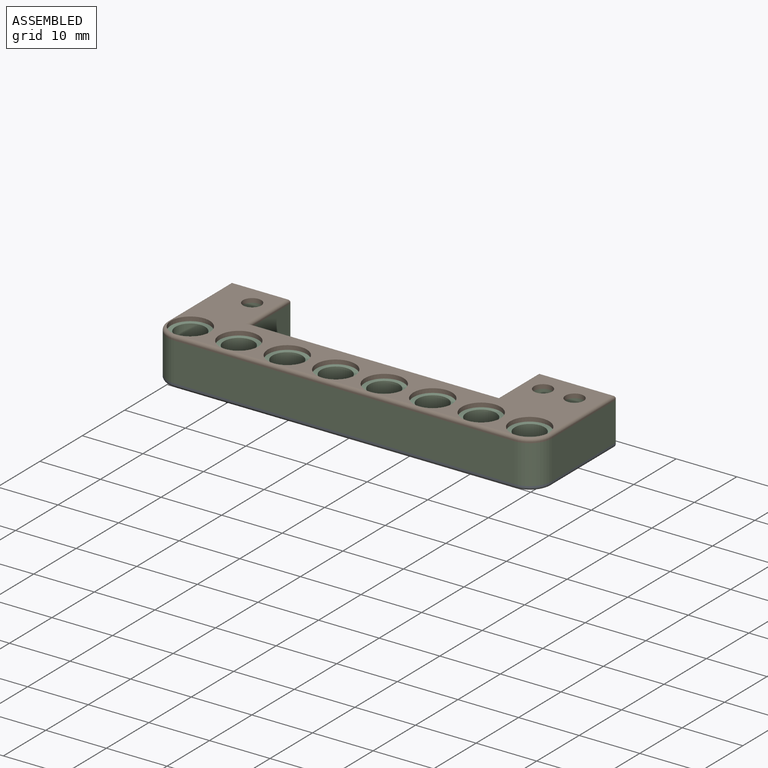
[diagram: assembled view]
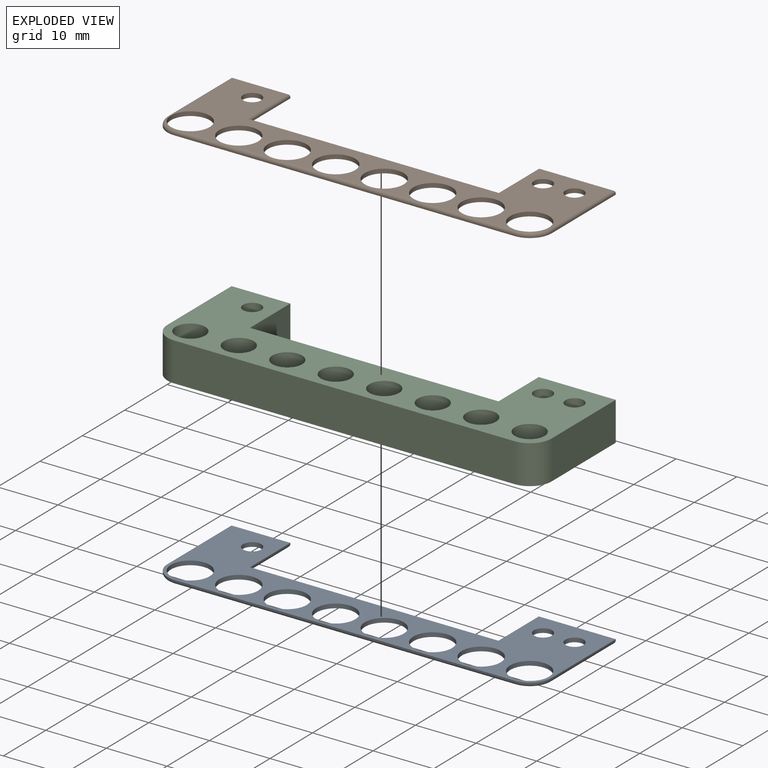
[diagram: exploded view]
GUIDED TOUR — MATED ASSEMBLY (Onshape document 63650e4bb9eb201698afe49c, AutoMate assembly 63650e4bb9eb201698afe49c_6589cb25b0cd0660bc97dc05_730560b40a134088ffc5759b_default)

This assembly has 3 components, labeled P0..P2 below (a component is one placed occurrence of a part; the same part can appear more than once), held together by 2 mates. A mate is a constraint between two components; its type names the relative motion it leaves free:
  FASTENED — locks the two components together rigidly (no relative motion).
Axis/direction vectors are unit vectors and 'through' points are millimeter coordinates, both in the assembly's world frame.

MATES
  1. FASTENED "Fastened 2": P0 <-> P2, direction (0.000, 0.000, 1.000) through (0.79, -9.93, -6.84) mm
  2. FASTENED "Fastened 1": P1 <-> P2, direction (0.000, 0.000, -1.000) through (-7.21, -9.93, -0.44) mm

ASSEMBLY ORDER
  1. P2 — the base component [order verified]
  2. P0 [order verified]
  3. P1 [order verified]
Order-tag legend:
  [order verified] — this step's position reverses a verified removal order: the component was checked to insert without passing through the ones already placed.

Of the 3 components, 3 carry the full construction recipe — the FeatureScript program that regenerates the part's solid from scratch; the rest are supplied as boundary geometry only.
Each toured component is shown spotlighted twice — in the assembled view, then in the exploded view, where a leader line traces a displaced component back to its assembled socket (saturated green if recipe-attached, orange if geometry-only; every other component desaturated gray) — followed by its recipe or geometry summary and the mates that hold it.
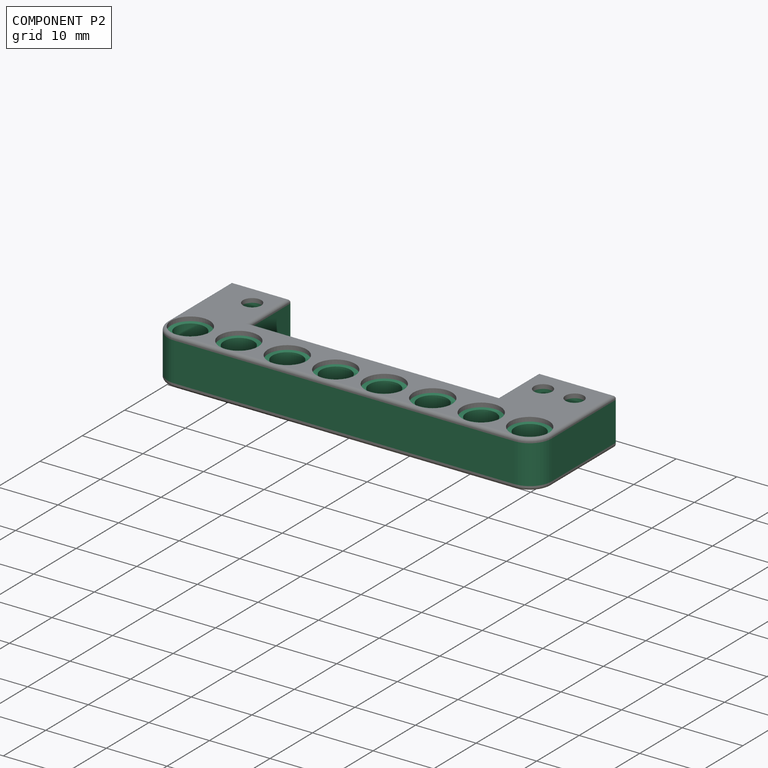
[diagram: component P2 — assembled]
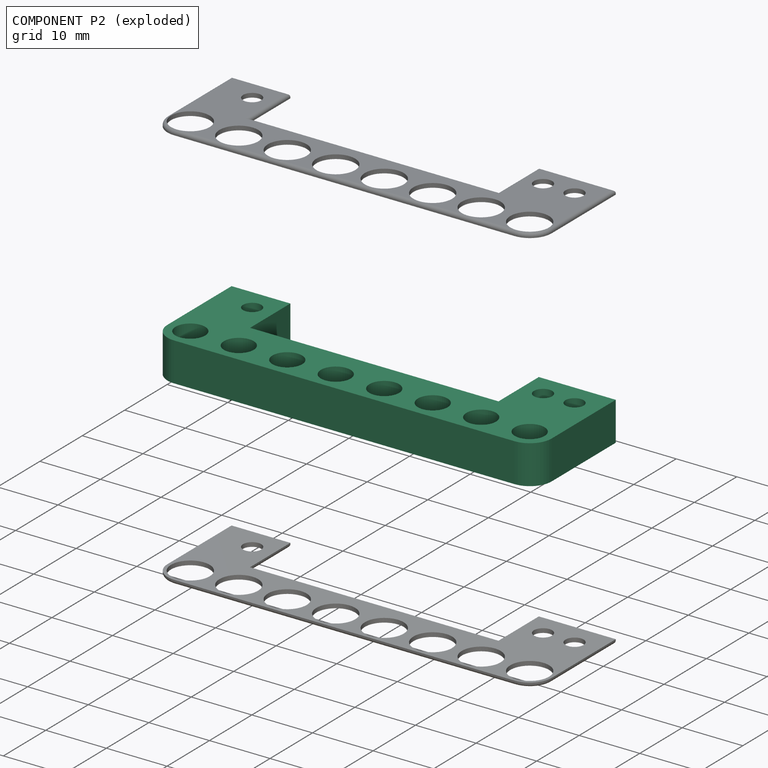
[diagram: component P2 — exploded]
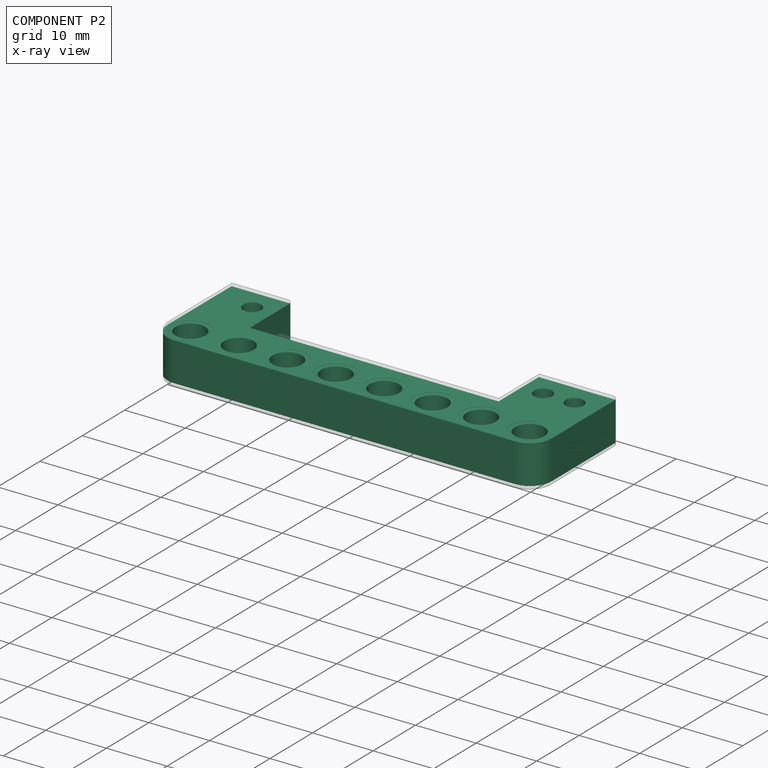
[diagram: component P2 — x-ray view]
COMPONENT P2 — recipe-attached (CADFS 00187021, mesh-verified: the recipe's output STEP matches this component's geometry to below the mesh-comparison resolution (tessellation chordal tolerance ~0.0996 mm)).
Held by: FASTENED mate "Fastened 2" to P0; FASTENED mate "Fastened 1" to P1.
Construction recipe (FeatureScript — the CAD program that rebuilds this solid; sketch coordinates are in the units given by the * unit suffixes, e.g. mm):

FeatureScript 1511;
import(path : "onshape/std/geometry.fs", version : "1511.0");
import(path : "onshape/std/common.fs", version : "1511.0");
const mm = millimeter;
const VERTEX = EntityType.VERTEX;
const EDGE = EntityType.EDGE;
const FACE = EntityType.FACE;
const BODY = EntityType.BODY;
function v(x, y){return vector(x, y);}
function OD(order){return orderDisambiguation(order);}
function OSD(set){return originalSetDisambiguation(set);}
function TD(topology){return topologyDisambiguation(topology);}
function TDD(query){return trueDependencyDisambiguation(query);}
function sQuery(a, b, c) {return sketchEntityQuery(a, b, c);}

annotation { "Feature Type Name" : "Feature", "Feature Type Description" : "" }
export const myFeature = defineFeature(function(context is Context, id is Id, definition is map)
    precondition{}
    {
        {
            var Q0;
            Q0=qCreatedBy(makeId("Top.planeOp"),FACE);
            var sketch = newSketch(context, id + "F0", { "sketchPlane" : qUnion([Q0])});
            skLineSegment(sketch, "E0", {"start": v(-31.7, 18.7) * mm, "end": v(-22, 18.7) * mm});
            skLineSegment(sketch, "E1", {"start": v(-22, 18.7) * mm, "end": v(-22, 9.2) * mm});
            skLineSegment(sketch, "E2", {"start": v(-22, 9.2) * mm, "end": v(19, 9.2) * mm});
            skLineSegment(sketch, "E3", {"start": v(19, 9.2) * mm, "end": v(19, 18.7) * mm});
            skLineSegment(sketch, "E4", {"start": v(19, 18.7) * mm, "end": v(31.7, 18.7) * mm});
            skLineSegment(sketch, "E5", {"start": v(31.7, 18.7) * mm, "end": v(31.7, 0) * mm});
            skLineSegment(sketch, "E6", {"start": v(31.7, 0) * mm, "end": v(-31.7, 0) * mm});
            skLineSegment(sketch, "E7", {"start": v(-31.7, 0) * mm, "end": v(-31.7, 18.7) * mm});
            skCircle(sketch, "E8", {"center": v(-25.5, 14.7) * mm, "radius": 1.5 * mm});
            skCircle(sketch, "E9", {"center": v(22.5, 14.7) * mm, "radius": 1.5 * mm});
            skCircle(sketch, "E10", {"center": v(-28, 3.7) * mm, "radius": 2.45 * mm});
            skCircle(sketch, "E11", {"center": v(4, 3.7) * mm, "radius": 2.45 * mm});
            skCircle(sketch, "E12", {"center": v(-12, 3.7) * mm, "radius": 2.45 * mm});
            skCircle(sketch, "E13", {"center": v(-4, 3.7) * mm, "radius": 2.45 * mm});
            skLineSegment(sketch, "E14.top", {"start": v(-10.35, 0) * mm, "end": v(-18.35, 0) * mm});
            skCircle(sketch, "E15", {"center": v(-20, 3.7) * mm, "radius": 2.45 * mm});
            skCircle(sketch, "E16", {"center": v(12, 3.7) * mm, "radius": 2.45 * mm});
            skCircle(sketch, "E17", {"center": v(20, 3.7) * mm, "radius": 2.45 * mm});
            skCircle(sketch, "E18", {"center": v(28, 3.7) * mm, "radius": 2.45 * mm});
            skCircle(sketch, "E19", {"center": v(27.7, 14.7) * mm, "radius": 1.5 * mm});
            skSolve(sketch);
        }
        {
            var Q0;
            Q0=makeQuery(id+"F0.imprint","IMPRINT",FACE,{"disambiguationData":[TD([[makeQuery(id+"F0.imprint","IMPRINT",EDGE,{"derivedFrom":sQuery(id+"F0.wireOp",EDGE,"E0")}),-1.0]])]});
            extrude(context, id + "F1", {"entities" : qUnion([Q0]), "depth" : 6.4 * mm});
        }
        {
            var Q0;
            Q0=makeQuery(id+"F1.opExtrude","SWEPT_EDGE",EDGE,{"disambiguationData":[OSD([sQuery(id+"F0.wireOp",EDGE,"E6"),sQuery(id+"F0.wireOp",EDGE,"E7")])]});
            var Q1;
            Q1=makeQuery(id+"F1.opExtrude","SWEPT_EDGE",EDGE,{"disambiguationData":[OSD([sQuery(id+"F0.wireOp",EDGE,"E5"),sQuery(id+"F0.wireOp",EDGE,"E6")])]});
            fillet(context, id + "F2", {"entities" : qUnion([Q0, Q1]), "radius" : 3.6 * mm, "tangentPropagation" : true, "allowEdgeOverflow" : false});
        }
    });
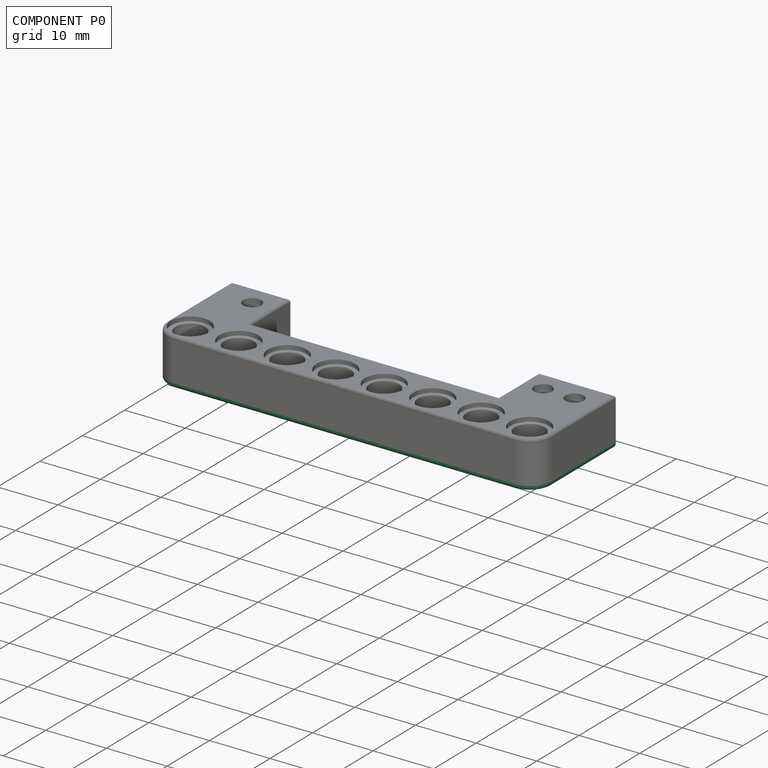
[diagram: component P0 — assembled]
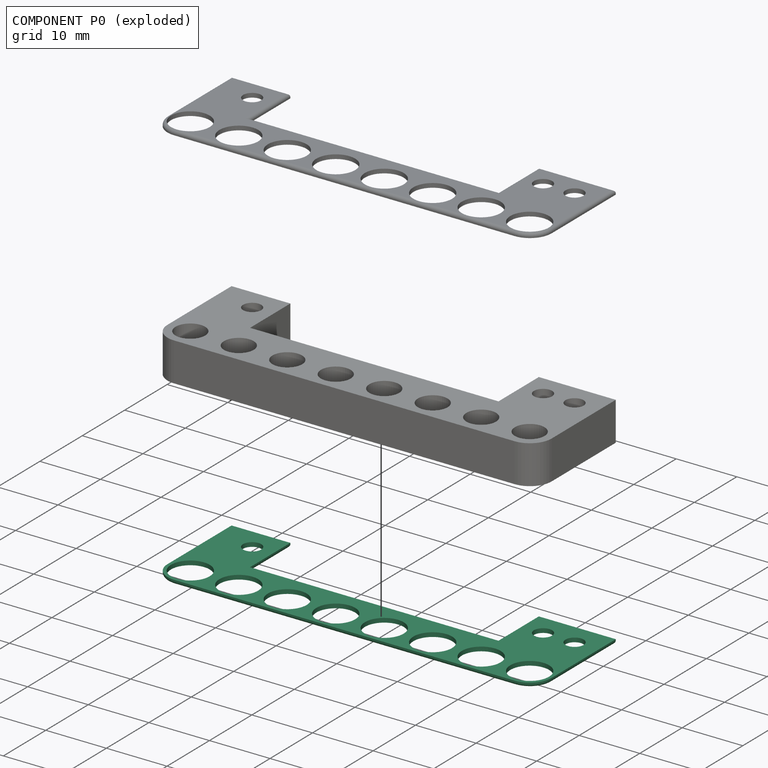
[diagram: component P0 — exploded]
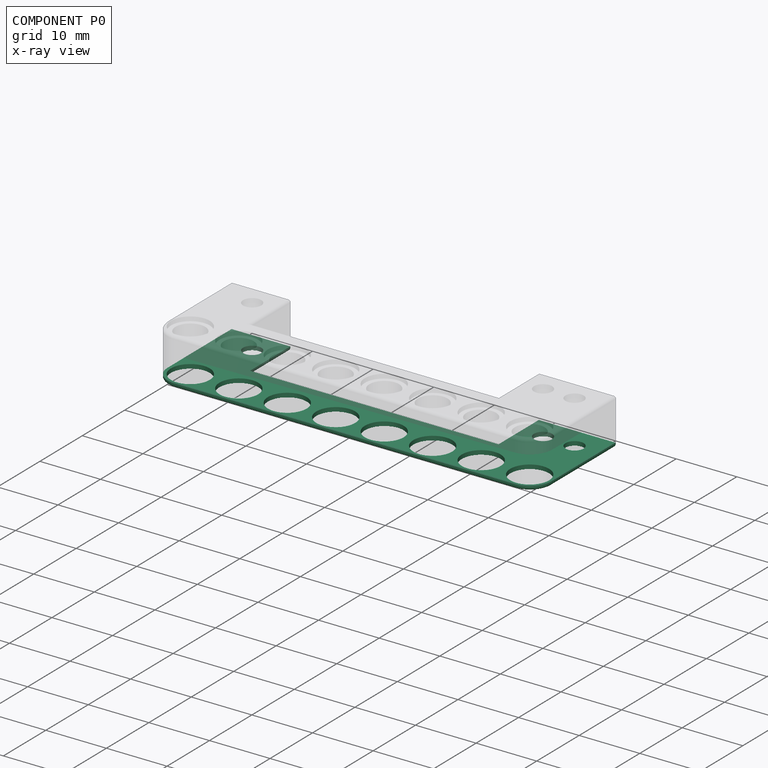
[diagram: component P0 — x-ray view]
COMPONENT P0 — recipe-attached (CADFS 00187020, mesh-verified: the recipe's output STEP matches this component's geometry to below the mesh-comparison resolution (tessellation chordal tolerance ~0.0992 mm)).
Held by: FASTENED mate "Fastened 2" to P2.
Construction recipe (FeatureScript — the CAD program that rebuilds this solid; sketch coordinates are in the units given by the * unit suffixes, e.g. mm):

FeatureScript 1511;
import(path : "onshape/std/geometry.fs", version : "1511.0");
import(path : "onshape/std/common.fs", version : "1511.0");
const mm = millimeter;
const VERTEX = EntityType.VERTEX;
const EDGE = EntityType.EDGE;
const FACE = EntityType.FACE;
const BODY = EntityType.BODY;
function v(x, y){return vector(x, y);}
function OD(order){return orderDisambiguation(order);}
function OSD(set){return originalSetDisambiguation(set);}
function TD(topology){return topologyDisambiguation(topology);}
function TDD(query){return trueDependencyDisambiguation(query);}
function sQuery(a, b, c) {return sketchEntityQuery(a, b, c);}

annotation { "Feature Type Name" : "Feature", "Feature Type Description" : "" }
export const myFeature = defineFeature(function(context is Context, id is Id, definition is map)
    precondition{}
    {
        {
            var Q0;
            Q0=qCreatedBy(makeId("Top.planeOp"),FACE);
            var sketch = newSketch(context, id + "F0", { "sketchPlane" : qUnion([Q0])});
            skLineSegment(sketch, "E0", {"start": v(-31.7, 18.7) * mm, "end": v(-22, 18.7) * mm});
            skLineSegment(sketch, "E1", {"start": v(-22, 18.7) * mm, "end": v(-22, 9.2) * mm});
            skLineSegment(sketch, "E2", {"start": v(-22, 9.2) * mm, "end": v(19, 9.2) * mm});
            skLineSegment(sketch, "E3", {"start": v(19, 9.2) * mm, "end": v(19, 18.7) * mm});
            skLineSegment(sketch, "E4", {"start": v(19, 18.7) * mm, "end": v(31.7, 18.7) * mm});
            skLineSegment(sketch, "E5", {"start": v(31.7, 18.7) * mm, "end": v(31.7, 0) * mm});
            skLineSegment(sketch, "E6", {"start": v(31.7, 0) * mm, "end": v(-31.7, 0) * mm});
            skLineSegment(sketch, "E7", {"start": v(-31.7, 0) * mm, "end": v(-31.7, 18.7) * mm});
            skCircle(sketch, "E8", {"center": v(-25.5, 14.7) * mm, "radius": 1.5 * mm});
            skCircle(sketch, "E9", {"center": v(22.5, 14.7) * mm, "radius": 1.5 * mm});
            skCircle(sketch, "E10", {"center": v(-28, 3.7) * mm, "radius": 3.2 * mm});
            skCircle(sketch, "E11", {"center": v(4, 3.7) * mm, "radius": 3.2 * mm});
            skCircle(sketch, "E12", {"center": v(-12, 3.7) * mm, "radius": 3.2 * mm});
            skCircle(sketch, "E13", {"center": v(-4, 3.7) * mm, "radius": 3.2 * mm});
            skLineSegment(sketch, "E14.top", {"start": v(-10.35, 0) * mm, "end": v(-18.35, 0) * mm});
            skCircle(sketch, "E15", {"center": v(-20, 3.7) * mm, "radius": 3.2 * mm});
            skCircle(sketch, "E16", {"center": v(12, 3.7) * mm, "radius": 3.2 * mm});
            skCircle(sketch, "E17", {"center": v(20, 3.7) * mm, "radius": 3.2 * mm});
            skCircle(sketch, "E18", {"center": v(28, 3.7) * mm, "radius": 3.2 * mm});
            skCircle(sketch, "E19", {"center": v(27.7, 14.7) * mm, "radius": 1.5 * mm});
            skSolve(sketch);
        }
        {
            var Q0;
            Q0=makeQuery(id+"F0.imprint","IMPRINT",FACE,{"disambiguationData":[TD([[makeQuery(id+"F0.imprint","IMPRINT",EDGE,{"derivedFrom":sQuery(id+"F0.wireOp",EDGE,"E0")}),-1.0]])]});
            extrude(context, id + "F1", {"entities" : qUnion([Q0]), "depth" : 0.7 * mm});
        }
        {
            var Q0;
            Q0=makeQuery(id+"F1.opExtrude","CAP_EDGE",EDGE,{"disambiguationData":[OSD([sQuery(id+"F0.wireOp",EDGE,"E7")])],"isStart":true});
            var Q1;
            Q1=makeQuery(id+"F1.opExtrude","CAP_EDGE",EDGE,{"disambiguationData":[OSD([sQuery(id+"F0.wireOp",EDGE,"E6"),sQuery(id+"F0.wireOp",EDGE,"E14.top")])],"isStart":true});
            var Q2;
            Q2=makeQuery(id+"F1.opExtrude","CAP_EDGE",EDGE,{"disambiguationData":[OSD([sQuery(id+"F0.wireOp",EDGE,"E5")])],"isStart":true});
            var Q3;
            Q3=makeQuery(id+"F1.opExtrude","CAP_EDGE",EDGE,{"disambiguationData":[OSD([sQuery(id+"F0.wireOp",EDGE,"E4")])],"isStart":true});
            var Q4;
            Q4=makeQuery(id+"F1.opExtrude","CAP_EDGE",EDGE,{"disambiguationData":[OSD([sQuery(id+"F0.wireOp",EDGE,"E3")])],"isStart":true});
            var Q5;
            Q5=makeQuery(id+"F1.opExtrude","CAP_EDGE",EDGE,{"disambiguationData":[OSD([sQuery(id+"F0.wireOp",EDGE,"E2")])],"isStart":true});
            var Q6;
            Q6=makeQuery(id+"F1.opExtrude","CAP_EDGE",EDGE,{"disambiguationData":[OSD([sQuery(id+"F0.wireOp",EDGE,"E1")])],"isStart":true});
            var Q7;
            Q7=makeQuery(id+"F1.opExtrude","CAP_EDGE",EDGE,{"disambiguationData":[OSD([sQuery(id+"F0.wireOp",EDGE,"E0")])],"isStart":true});
            fillet(context, id + "F2", {"entities" : qUnion([Q0, Q1, Q2, Q3, Q4, Q5, Q6, Q7]), "radius" : 0.5 * mm, "tangentPropagation" : true, "allowEdgeOverflow" : false});
        }
        {
            var Q0;
            Q0=makeQuery(id+"F1.opExtrude","SWEPT_EDGE",EDGE,{"disambiguationData":[OSD([sQuery(id+"F0.wireOp",EDGE,"E6"),sQuery(id+"F0.wireOp",EDGE,"E7")])]});
            var Q1;
            Q1=makeQuery(id+"F2.opFillet","BLEND_EDGE",EDGE,{"blendedFrom":[makeQuery(id+"F1.opExtrude","CAP_EDGE",EDGE,{"disambiguationData":[OSD([sQuery(id+"F0.wireOp",EDGE,"E6"),sQuery(id+"F0.wireOp",EDGE,"E14.top")])],"isStart":true}),makeQuery(id+"F1.opExtrude","CAP_EDGE",EDGE,{"disambiguationData":[OSD([sQuery(id+"F0.wireOp",EDGE,"E7")])],"isStart":true})],"blendedInto":[]});
            var Q2;
            Q2=makeQuery(id+"F1.opExtrude","SWEPT_EDGE",EDGE,{"disambiguationData":[OSD([sQuery(id+"F0.wireOp",EDGE,"E5"),sQuery(id+"F0.wireOp",EDGE,"E6")])]});
            var Q3;
            Q3=makeQuery(id+"F2.opFillet","BLEND_EDGE",EDGE,{"blendedFrom":[makeQuery(id+"F1.opExtrude","CAP_EDGE",EDGE,{"disambiguationData":[OSD([sQuery(id+"F0.wireOp",EDGE,"E5")])],"isStart":true}),makeQuery(id+"F1.opExtrude","CAP_EDGE",EDGE,{"disambiguationData":[OSD([sQuery(id+"F0.wireOp",EDGE,"E6"),sQuery(id+"F0.wireOp",EDGE,"E14.top")])],"isStart":true})],"blendedInto":[]});
            fillet(context, id + "F3", {"entities" : qUnion([Q0, Q1, Q2, Q3]), "radius" : 3.6 * mm, "tangentPropagation" : true, "allowEdgeOverflow" : false});
        }
    });
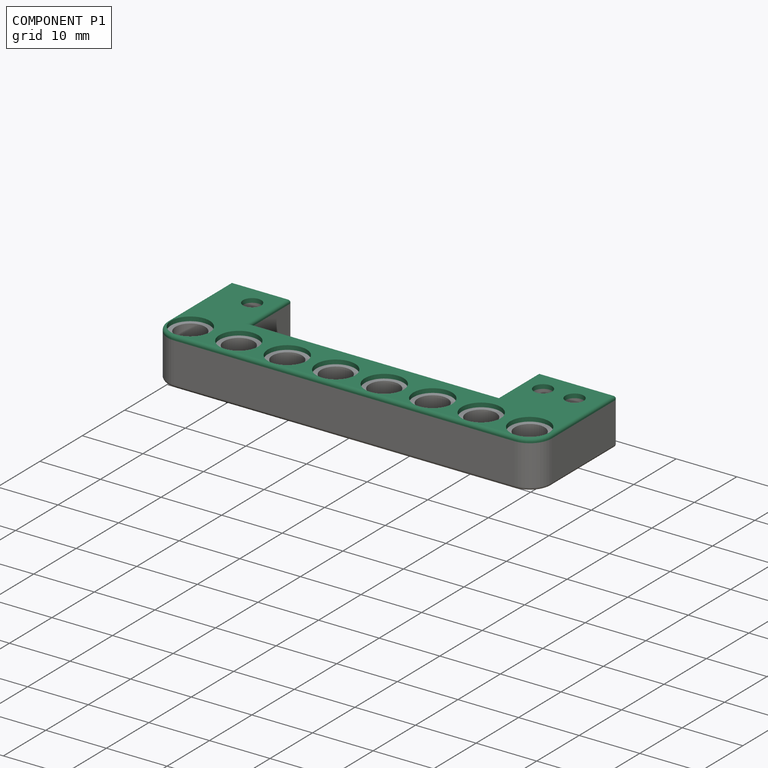
[diagram: component P1 — assembled]
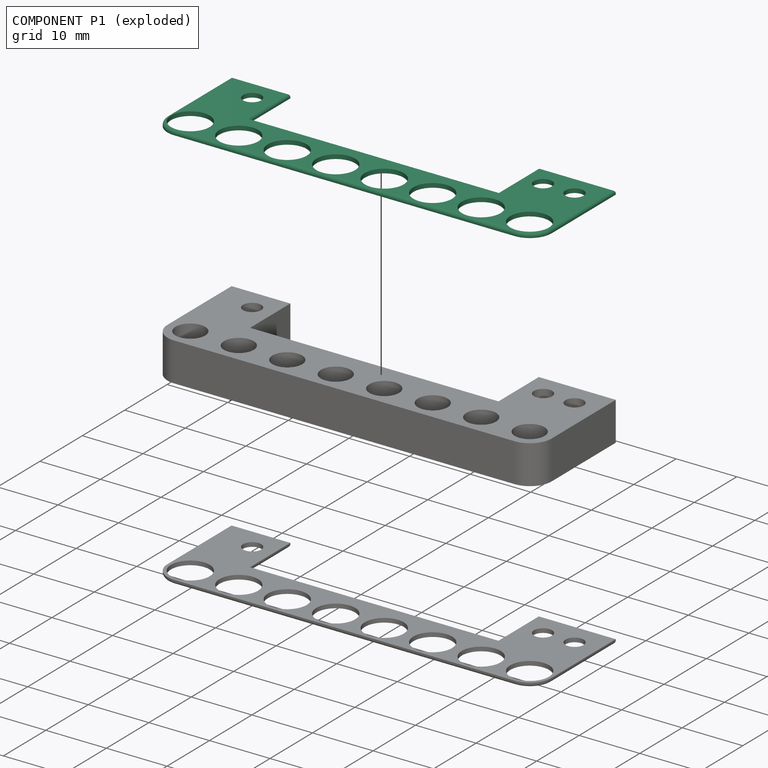
[diagram: component P1 — exploded]
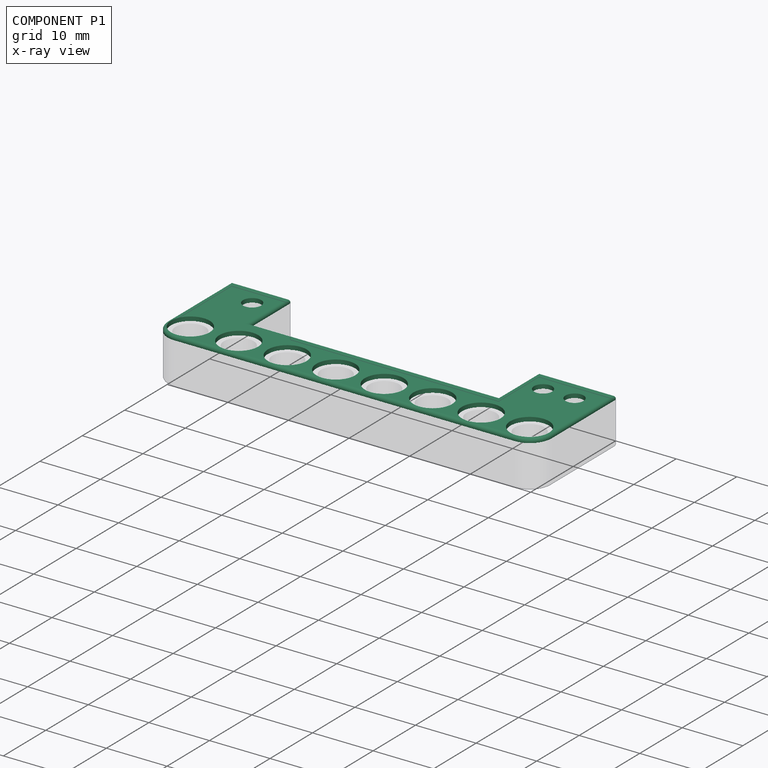
[diagram: component P1 — x-ray view]
COMPONENT P1 — recipe-attached (CADFS 00187019, mesh-verified: the recipe's output STEP matches this component's geometry to below the mesh-comparison resolution (tessellation chordal tolerance ~0.0992 mm)).
Held by: FASTENED mate "Fastened 1" to P2.
Construction recipe (FeatureScript — the CAD program that rebuilds this solid; sketch coordinates are in the units given by the * unit suffixes, e.g. mm):

FeatureScript 1511;
import(path : "onshape/std/geometry.fs", version : "1511.0");
import(path : "onshape/std/common.fs", version : "1511.0");
const mm = millimeter;
const VERTEX = EntityType.VERTEX;
const EDGE = EntityType.EDGE;
const FACE = EntityType.FACE;
const BODY = EntityType.BODY;
function v(x, y){return vector(x, y);}
function OD(order){return orderDisambiguation(order);}
function OSD(set){return originalSetDisambiguation(set);}
function TD(topology){return topologyDisambiguation(topology);}
function TDD(query){return trueDependencyDisambiguation(query);}
function sQuery(a, b, c) {return sketchEntityQuery(a, b, c);}

annotation { "Feature Type Name" : "Feature", "Feature Type Description" : "" }
export const myFeature = defineFeature(function(context is Context, id is Id, definition is map)
    precondition{}
    {
        {
            var Q0;
            Q0=qCreatedBy(makeId("Top.planeOp"),FACE);
            var sketch = newSketch(context, id + "F0", { "sketchPlane" : qUnion([Q0])});
            skLineSegment(sketch, "E0", {"start": v(-31.7, 18.7) * mm, "end": v(-22, 18.7) * mm});
            skLineSegment(sketch, "E1", {"start": v(-22, 18.7) * mm, "end": v(-22, 9.2) * mm});
            skLineSegment(sketch, "E2", {"start": v(-22, 9.2) * mm, "end": v(19, 9.2) * mm});
            skLineSegment(sketch, "E3", {"start": v(19, 9.2) * mm, "end": v(19, 18.7) * mm});
            skLineSegment(sketch, "E4", {"start": v(19, 18.7) * mm, "end": v(31.7, 18.7) * mm});
            skLineSegment(sketch, "E5", {"start": v(31.7, 18.7) * mm, "end": v(31.7, 0) * mm});
            skLineSegment(sketch, "E6", {"start": v(31.7, 0) * mm, "end": v(-31.7, 0) * mm});
            skLineSegment(sketch, "E7", {"start": v(-31.7, 0) * mm, "end": v(-31.7, 18.7) * mm});
            skCircle(sketch, "E8", {"center": v(-25.5, 14.7) * mm, "radius": 1.5 * mm});
            skCircle(sketch, "E9", {"center": v(22.5, 14.7) * mm, "radius": 1.5 * mm});
            skCircle(sketch, "E10", {"center": v(-28, 3.7) * mm, "radius": 3.2 * mm});
            skCircle(sketch, "E11", {"center": v(4, 3.7) * mm, "radius": 3.2 * mm});
            skCircle(sketch, "E12", {"center": v(-12, 3.7) * mm, "radius": 3.2 * mm});
            skCircle(sketch, "E13", {"center": v(-4, 3.7) * mm, "radius": 3.2 * mm});
            skLineSegment(sketch, "E14.top", {"start": v(-10.35, 0) * mm, "end": v(-18.35, 0) * mm});
            skCircle(sketch, "E15", {"center": v(-20, 3.7) * mm, "radius": 3.2 * mm});
            skCircle(sketch, "E16", {"center": v(12, 3.7) * mm, "radius": 3.2 * mm});
            skCircle(sketch, "E17", {"center": v(20, 3.7) * mm, "radius": 3.2 * mm});
            skCircle(sketch, "E18", {"center": v(28, 3.7) * mm, "radius": 3.2 * mm});
            skCircle(sketch, "E19", {"center": v(27.7, 14.7) * mm, "radius": 1.5 * mm});
            skSolve(sketch);
        }
        {
            var Q0;
            Q0=makeQuery(id+"F0.imprint","IMPRINT",FACE,{"disambiguationData":[TD([[makeQuery(id+"F0.imprint","IMPRINT",EDGE,{"derivedFrom":sQuery(id+"F0.wireOp",EDGE,"E0")}),-1.0]])]});
            extrude(context, id + "F1", {"entities" : qUnion([Q0]), "depth" : 0.7 * mm});
        }
        {
            var Q0;
            Q0=makeQuery(id+"F1.opExtrude","CAP_EDGE",EDGE,{"disambiguationData":[OSD([sQuery(id+"F0.wireOp",EDGE,"E6")])],"isStart":false});
            var Q1;
            Q1=makeQuery(id+"F1.opExtrude","CAP_EDGE",EDGE,{"disambiguationData":[OSD([sQuery(id+"F0.wireOp",EDGE,"E7"),sQuery(id+"F0.wireOp",EDGE,"gDoAqS5J-GwKx-NIl1-ceZj-vuHMme4C13Uk.right")])],"isStart":false});
            var Q2;
            Q2=makeQuery(id+"F1.opExtrude","CAP_EDGE",EDGE,{"disambiguationData":[OSD([sQuery(id+"F0.wireOp",EDGE,"E0")])],"isStart":false});
            var Q3;
            Q3=makeQuery(id+"F1.opExtrude","CAP_EDGE",EDGE,{"disambiguationData":[OSD([sQuery(id+"F0.wireOp",EDGE,"E1")])],"isStart":false});
            var Q4;
            Q4=makeQuery(id+"F1.opExtrude","CAP_EDGE",EDGE,{"disambiguationData":[OSD([sQuery(id+"F0.wireOp",EDGE,"E2")])],"isStart":false});
            var Q5;
            Q5=makeQuery(id+"F1.opExtrude","CAP_EDGE",EDGE,{"disambiguationData":[OSD([sQuery(id+"F0.wireOp",EDGE,"E3")])],"isStart":false});
            var Q6;
            Q6=makeQuery(id+"F1.opExtrude","CAP_EDGE",EDGE,{"disambiguationData":[OSD([sQuery(id+"F0.wireOp",EDGE,"E4"),sQuery(id+"F0.wireOp",EDGE,"y1poqJQj-ZdzA-tnpm-zgBr-kg1aAtWxKc9v.bottom")])],"isStart":false});
            var Q7;
            Q7=makeQuery(id+"F1.opExtrude","CAP_EDGE",EDGE,{"disambiguationData":[OSD([sQuery(id+"F0.wireOp",EDGE,"E5")])],"isStart":false});
            fillet(context, id + "F2", {"entities" : qUnion([Q0, Q1, Q2, Q3, Q4, Q5, Q6, Q7]), "radius" : 0.5 * mm, "tangentPropagation" : true, "allowEdgeOverflow" : false});
        }
        {
            var Q0;
            Q0=makeQuery(id+"F1.opExtrude","SWEPT_EDGE",EDGE,{"disambiguationData":[OSD([sQuery(id+"F0.wireOp",EDGE,"E6"),sQuery(id+"F0.wireOp",EDGE,"E7")])]});
            var Q1;
            Q1=makeQuery(id+"F2.opFillet","BLEND_EDGE",EDGE,{"blendedFrom":[makeQuery(id+"F1.opExtrude","CAP_EDGE",EDGE,{"disambiguationData":[OSD([sQuery(id+"F0.wireOp",EDGE,"E6"),sQuery(id+"F0.wireOp",EDGE,"E14.top")])],"isStart":false}),makeQuery(id+"F1.opExtrude","CAP_EDGE",EDGE,{"disambiguationData":[OSD([sQuery(id+"F0.wireOp",EDGE,"E7")])],"isStart":false})],"blendedInto":[]});
            var Q2;
            Q2=makeQuery(id+"F1.opExtrude","SWEPT_EDGE",EDGE,{"disambiguationData":[OSD([sQuery(id+"F0.wireOp",EDGE,"E5"),sQuery(id+"F0.wireOp",EDGE,"E6")])]});
            var Q3;
            Q3=makeQuery(id+"F2.opFillet","BLEND_EDGE",EDGE,{"blendedFrom":[makeQuery(id+"F1.opExtrude","CAP_EDGE",EDGE,{"disambiguationData":[OSD([sQuery(id+"F0.wireOp",EDGE,"E5")])],"isStart":false}),makeQuery(id+"F1.opExtrude","CAP_EDGE",EDGE,{"disambiguationData":[OSD([sQuery(id+"F0.wireOp",EDGE,"E6"),sQuery(id+"F0.wireOp",EDGE,"E14.top")])],"isStart":false})],"blendedInto":[]});
            fillet(context, id + "F3", {"entities" : qUnion([Q0, Q1, Q2, Q3]), "radius" : 3.6 * mm, "tangentPropagation" : true, "allowEdgeOverflow" : false});
        }
    });
PROVENANCE & LICENSES
Assembly (occurrences, transforms, mates, per-part STEP geometry): AutoMate dataset, Zenodo record 7776208, CC0.
Construction recipes: CADFS (HuggingFace VladPyatov/CADFS, CC-BY-4.0, layered over the ABC dataset), FeatureScript reconstruction programs keyed by ABC model id.
Join: ABC meta listings map ABC model id -> Onshape documentId; within a shared document, parts are matched by geometric signature (bounding-box dims + volume at 0.1% relative tolerance, exact B-rep face/solid counts).
Verification: 3 of this assembly's 3 components carry a recipe attachment, and every attachment is mesh-verified: the CADFS STEP and the AutoMate member STEP were compared as meshes in their shared local frame (symmetric sampled-point-to-mesh distance); worst across the 3 attachments: below the mesh-comparison resolution (tessellation chordal tolerance ~0.0996 mm) on a 66 mm part.
Renders: orthographic iso camera (az 35 / el 25); the floor grid conveys scale (grid pitch printed in each image; no ruler). In the exploded view each component is displaced by its stored offset vector: the offsets alone carry the explosion direction (mate normal/axis signs are not orientation cues and do not encode it), and separation distances are assigned per mate-chain, not proportionally to assembly-order depth.
